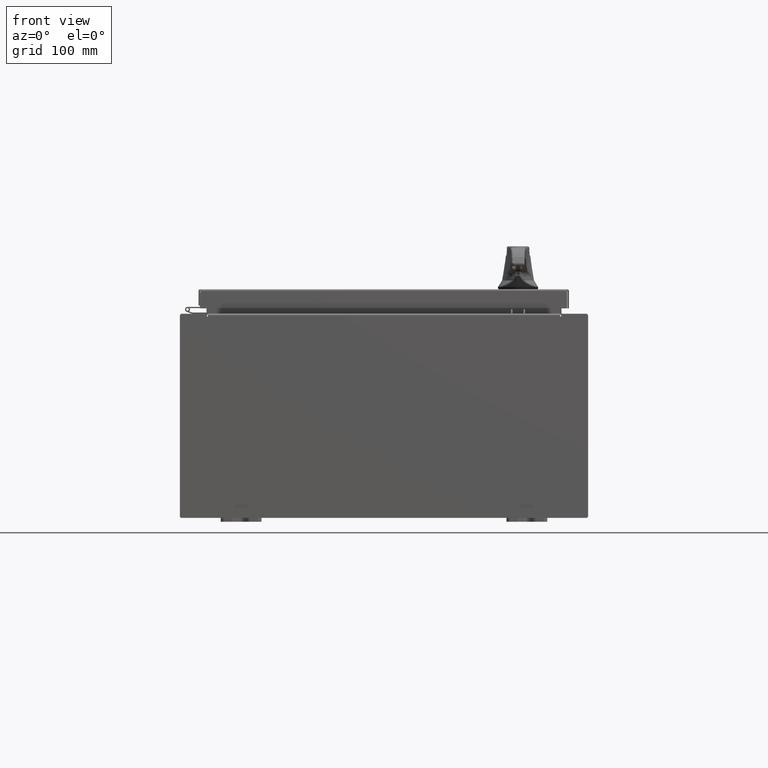
[diagram: clean part render]
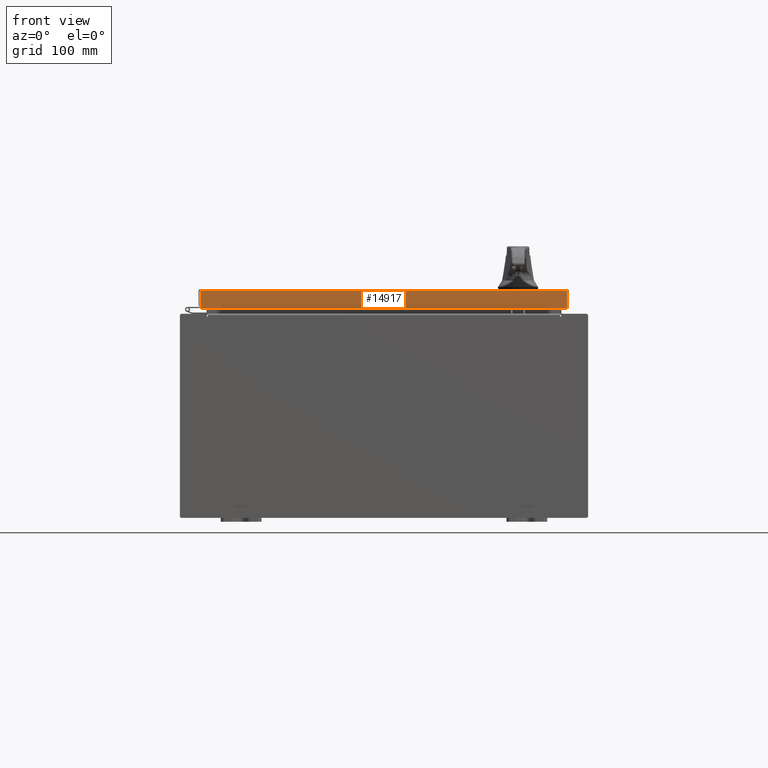
[diagram: same view with one face highlighted and labeled with its STEP entity id]
A machine part, front view. The second image highlights one B-rep face of the part: STEP entity #14917.
In plain terms, the highlighted planar face has unit normal (-0, 1, -0).
Its self-contained STEP definition (entity closure, byte-faithful):
#8674 = LINE ( 'NONE', #12052, #99139 ) ;
#12052 = CARTESIAN_POINT ( 'NONE',  ( 8.989157864376267100, -11.09400000000000100, -0.07469999999999980800 ) ) ;
#14917 = ADVANCED_FACE ( 'NONE', ( #42178 ), #16928, .F. ) ;
#16911 = DIRECTION ( 'NONE',  ( 0.0000000000000000000, 2.532419924601866100E-015, 1.000000000000000000 ) ) ;
#16928 = PLANE ( 'NONE',  #74641 ) ;
#17206 = CARTESIAN_POINT ( 'NONE',  ( 1.335409633915462200E-015, -11.09400000000000100, 2.835548029954469000E-014 ) ) ;
#17454 = DIRECTION ( 'NONE',  ( -1.203722403024573700E-016, 1.000000000000000000, -2.532419924601866100E-015 ) ) ;
#22637 = ORIENTED_EDGE ( 'NONE', *, *, #101979, .F. ) ;
#29642 = DIRECTION ( 'NONE',  ( -0.0000000000000000000, -2.532419924601866100E-015, -1.000000000000000000 ) ) ;
#32633 = ORIENTED_EDGE ( 'NONE', *, *, #58796, .F. ) ;
#36762 = ORIENTED_EDGE ( 'NONE', *, *, #74112, .T. ) ;
#36816 = VERTEX_POINT ( 'NONE', #43762 ) ;
#37217 = ORIENTED_EDGE ( 'NONE', *, *, #85275, .F. ) ;
#42178 = FACE_OUTER_BOUND ( 'NONE', #108315, .T. ) ;
#43762 = CARTESIAN_POINT ( 'NONE',  ( -8.989157864376267100, -11.09400000000000700, -0.9376999999999976500 ) ) ;
#44049 = VECTOR ( 'NONE', #75723, 39.37007874015748100 ) ;
#49510 = LINE ( 'NONE', #66950, #44049 ) ;
#49662 = VERTEX_POINT ( 'NONE', #110915 ) ;
#57137 = VECTOR ( 'NONE', #64481, 39.37007874015748100 ) ;
#58796 = EDGE_CURVE ( 'NONE', #93123, #36816, #69575, .T. ) ;
#59896 = LINE ( 'NONE', #81810, #57137 ) ;
#63678 = CARTESIAN_POINT ( 'NONE',  ( 8.989157864376267100, -11.09400000000000100, -0.08769999999999898700 ) ) ;
#64481 = DIRECTION ( 'NONE',  ( 0.0000000000000000000, -2.532419924601866100E-015, -1.000000000000000000 ) ) ;
#66950 = CARTESIAN_POINT ( 'NONE',  ( 9.077999999999999400, -11.09400000000000100, -0.08770000000000008300 ) ) ;
#69575 = LINE ( 'NONE', #92028, #90170 ) ;
#74112 = EDGE_CURVE ( 'NONE', #49662, #36816, #59896, .T. ) ;
#74305 = DIRECTION ( 'NONE',  ( -1.000000000000000000, -1.203722403024570700E-016, 1.203722403024570700E-016 ) ) ;
#74641 = AXIS2_PLACEMENT_3D ( 'NONE', #17206, #17454, #16911 ) ;
#75723 = DIRECTION ( 'NONE',  ( 1.000000000000000000, 1.203722403024570700E-016, -1.203722403024570700E-016 ) ) ;
#81810 = CARTESIAN_POINT ( 'NONE',  ( -8.989157864376267100, -11.09400000000000100, 2.835548029954469300E-014 ) ) ;
#85275 = EDGE_CURVE ( 'NONE', #49662, #101269, #49510, .T. ) ;
#90170 = VECTOR ( 'NONE', #74305, 39.37007874015748100 ) ;
#92028 = CARTESIAN_POINT ( 'NONE',  ( 9.077999999999999400, -11.09400000000000300, -0.9376999999999997600 ) ) ;
#93123 = VERTEX_POINT ( 'NONE', #109103 ) ;
#99139 = VECTOR ( 'NONE', #29642, 39.37007874015748100 ) ;
#101269 = VERTEX_POINT ( 'NONE', #63678 ) ;
#101979 = EDGE_CURVE ( 'NONE', #101269, #93123, #8674, .T. ) ;
#108315 = EDGE_LOOP ( 'NONE', ( #37217, #36762, #32633, #22637 ) ) ;
#109103 = CARTESIAN_POINT ( 'NONE',  ( 8.989157864376267100, -11.09400000000000300, -0.9376999999999997600 ) ) ;
#110915 = CARTESIAN_POINT ( 'NONE',  ( -8.989157864376267100, -11.09400000000000100, -0.08769999999999791900 ) ) ;